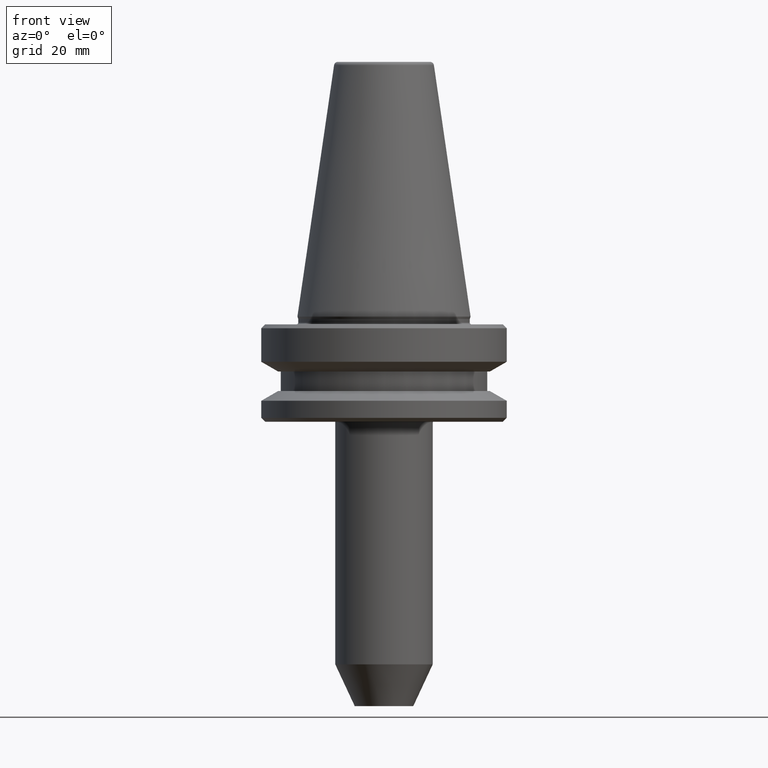
[diagram: clean part render]
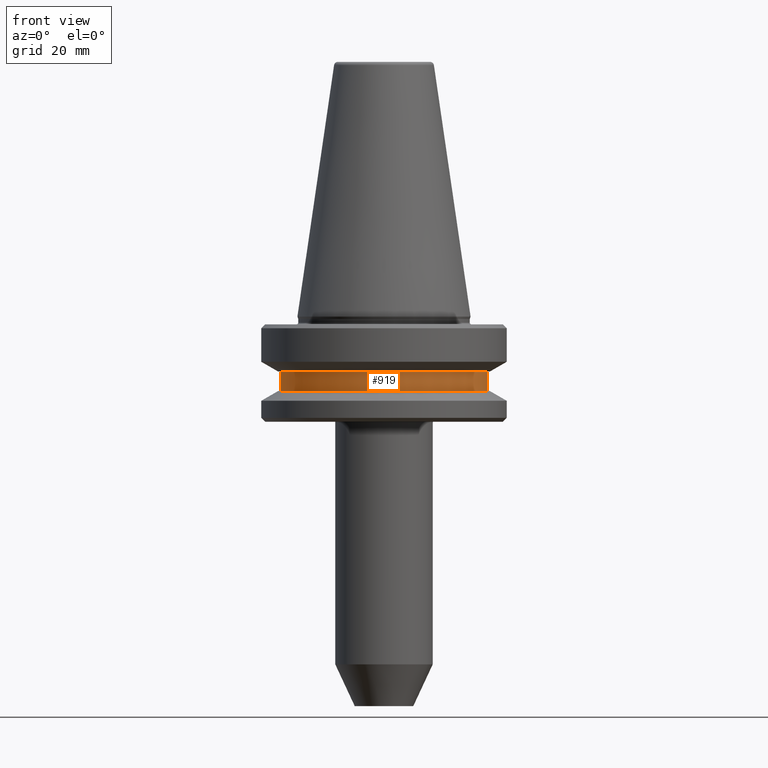
[diagram: same view with one face highlighted and labeled with its STEP entity id]
A machine part, front view. The second image highlights one B-rep face of the part: STEP entity #919.
In plain terms, the highlighted cylindrical surface (partial cylindrical patch) has radius 26.5 mm, axis along (-0, -0, 1).
Its self-contained STEP definition (entity closure, byte-faithful):
#1 = DIRECTION ( 'NONE',  ( 1.000000000000000000, 0.0000000000000000000, 0.0000000000000000000 ) ) ;
#17 = DIRECTION ( 'NONE',  ( -0.0000000000000000000, -0.0000000000000000000, 1.000000000000000000 ) ) ;
#53 = DIRECTION ( 'NONE',  ( -0.0000000000000000000, -0.0000000000000000000, 1.000000000000000000 ) ) ;
#55 = VERTEX_POINT ( 'NONE', #646 ) ;
#96 = AXIS2_PLACEMENT_3D ( 'NONE', #295, #663, #580 ) ;
#108 = AXIS2_PLACEMENT_3D ( 'NONE', #197, #615, #247 ) ;
#174 = EDGE_CURVE ( 'NONE', #327, #579, #932, .T. ) ;
#186 = LINE ( 'NONE', #412, #321 ) ;
#189 = CARTESIAN_POINT ( 'NONE',  ( 0.0000000000000000000, 0.0000000000000000000, -19.10000000000095000 ) ) ;
#193 = EDGE_CURVE ( 'NONE', #55, #998, #306, .T. ) ;
#197 = CARTESIAN_POINT ( 'NONE',  ( 0.0000000000000000000, 0.0000000000000000000, 94.60731411746931500 ) ) ;
#247 = DIRECTION ( 'NONE',  ( 1.000000000000000000, 0.0000000000000000000, 0.0000000000000000000 ) ) ;
#282 = ORIENTED_EDGE ( 'NONE', *, *, #174, .F. ) ;
#295 = CARTESIAN_POINT ( 'NONE',  ( 0.0000000000000000000, 0.0000000000000000000, -14.10000000000050100 ) ) ;
#306 = CIRCLE ( 'NONE', #379, 26.49999999999996800 ) ;
#321 = VECTOR ( 'NONE', #17, 1000.000000000000000 ) ;
#324 = CYLINDRICAL_SURFACE ( 'NONE', #108, 26.49999999999996800 ) ;
#327 = VERTEX_POINT ( 'NONE', #405 ) ;
#361 = EDGE_CURVE ( 'NONE', #998, #579, #820, .T. ) ;
#379 = AXIS2_PLACEMENT_3D ( 'NONE', #189, #53, #1 ) ;
#405 = CARTESIAN_POINT ( 'NONE',  ( -26.49999999999996800, 3.245314017740481800E-015, -14.10000000000050100 ) ) ;
#412 = CARTESIAN_POINT ( 'NONE',  ( -26.49999999999996800, 3.245314017740481800E-015, 94.60731411746931500 ) ) ;
#489 = EDGE_CURVE ( 'NONE', #55, #327, #186, .T. ) ;
#506 = FACE_OUTER_BOUND ( 'NONE', #656, .T. ) ;
#535 = DIRECTION ( 'NONE',  ( -0.0000000000000000000, -0.0000000000000000000, 1.000000000000000000 ) ) ;
#579 = VERTEX_POINT ( 'NONE', #954 ) ;
#580 = DIRECTION ( 'NONE',  ( 1.000000000000000000, 0.0000000000000000000, 0.0000000000000000000 ) ) ;
#594 = CARTESIAN_POINT ( 'NONE',  ( 26.49999999999996800, 0.0000000000000000000, -19.10000000000095000 ) ) ;
#615 = DIRECTION ( 'NONE',  ( -0.0000000000000000000, -0.0000000000000000000, 1.000000000000000000 ) ) ;
#624 = ORIENTED_EDGE ( 'NONE', *, *, #489, .F. ) ;
#646 = CARTESIAN_POINT ( 'NONE',  ( -26.49999999999996800, 3.245314017740481800E-015, -19.10000000000095000 ) ) ;
#656 = EDGE_LOOP ( 'NONE', ( #624, #920, #811, #282 ) ) ;
#663 = DIRECTION ( 'NONE',  ( -0.0000000000000000000, -0.0000000000000000000, 1.000000000000000000 ) ) ;
#810 = VECTOR ( 'NONE', #535, 1000.000000000000000 ) ;
#811 = ORIENTED_EDGE ( 'NONE', *, *, #361, .T. ) ;
#820 = LINE ( 'NONE', #927, #810 ) ;
#919 = ADVANCED_FACE ( 'NONE', ( #506 ), #324, .T. ) ;
#920 = ORIENTED_EDGE ( 'NONE', *, *, #193, .T. ) ;
#927 = CARTESIAN_POINT ( 'NONE',  ( 26.49999999999996800, 0.0000000000000000000, 94.60731411746931500 ) ) ;
#932 = CIRCLE ( 'NONE', #96, 26.49999999999996800 ) ;
#954 = CARTESIAN_POINT ( 'NONE',  ( 26.49999999999996800, 0.0000000000000000000, -14.10000000000050100 ) ) ;
#998 = VERTEX_POINT ( 'NONE', #594 ) ;